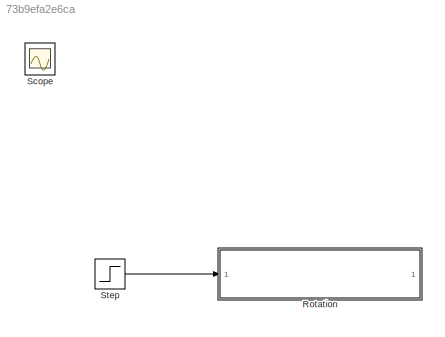
MODEL slx_73b9efa2e6ca
KIND model
CONFIG AbsTol = auto
CONFIG EnableMultiTasking = off
CONFIG FixedStep = auto
CONFIG MaxStep = auto
CONFIG MinStep = auto
CONFIG RelTol = 1e-3
CONFIG SampleTimeConstraint = Unconstrained
CONFIG SolverName = VariableStepAuto
CONFIG StartTime = 0.0
CONFIG StopTime = 10.0
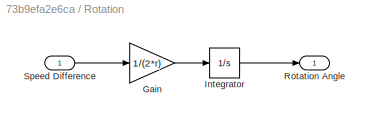
BLOCK [SubSystem] Rotation
BLOCK [Gain] Rotation/Gain
  Gain = 1/(2*r)
BLOCK [Integrator] Rotation/Integrator
BLOCK [Outport] Rotation/Rotation Angle
BLOCK [Inport] Rotation/Speed Difference
BLOCK [Scope] Scope
  Floating = off
  IOType = viewer
  NumInputPorts = 1
  ScopeSpecificationString = Simulink.scopes.TimeScopeBlockCfg('CurrentConfiguration', extmgr.ConfigurationSet(extmgr.Configuration('Core','General UI',true),extmgr.Configuration('Core','Source UI',true),extmgr.Configuration('Sources','WiredSimulink',true),extmgr.Configuration('Visuals','Time Domain',true,'SerializedDisplays',{struct('MinYLimReal','-3.75','MaxYLimReal','33.75','YLabelReal','','MinYLimMag','0.00000','MaxYLimMa...<+1340ch>
BLOCK [Step] Step
  SampleTime = 0
LINE Rotation/Gain:1 -> Rotation/Integrator:1
LINE Rotation/Integrator:1 -> Rotation/Rotation Angle:1
LINE Rotation/Speed Difference:1 -> Rotation/Gain:1
LINE Step:1 -> Rotation:1
